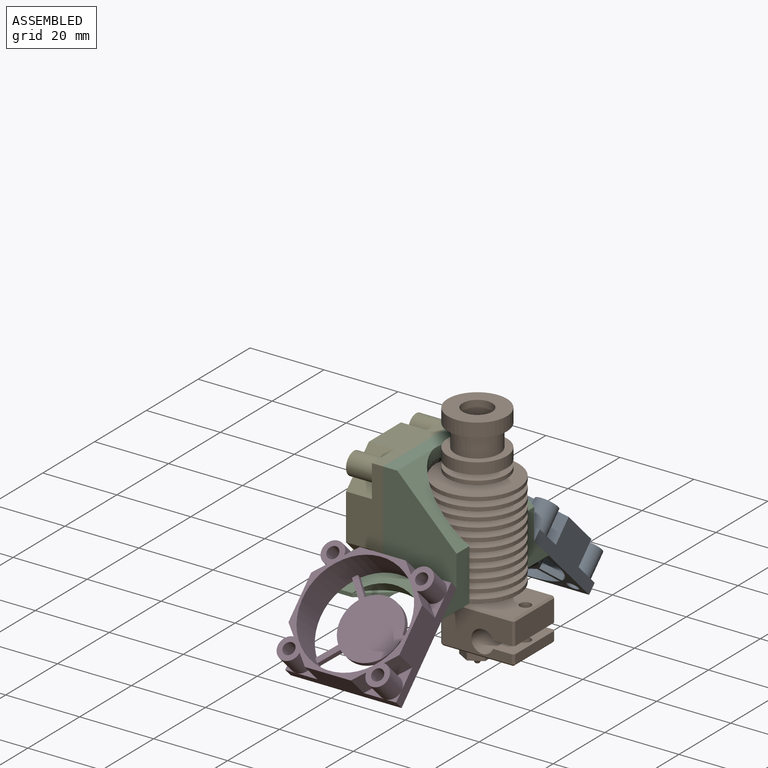
[diagram: assembled view]
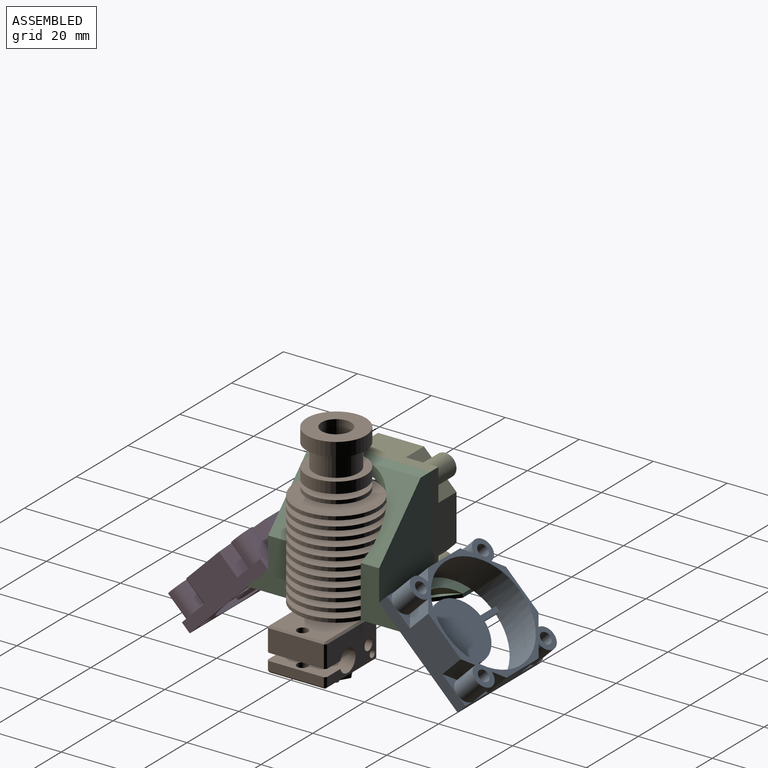
[diagram: assembled view, second angle]
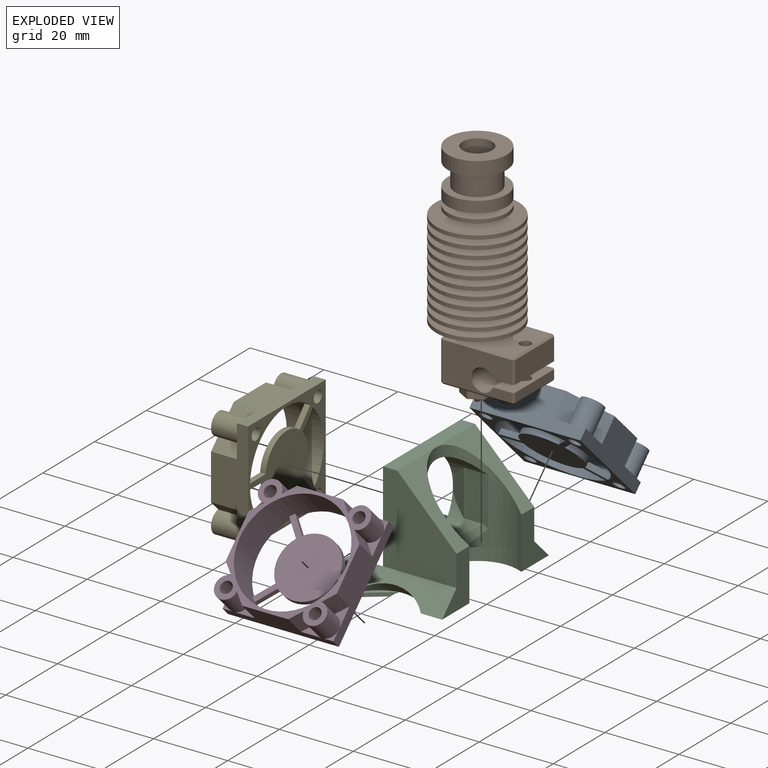
[diagram: exploded view]
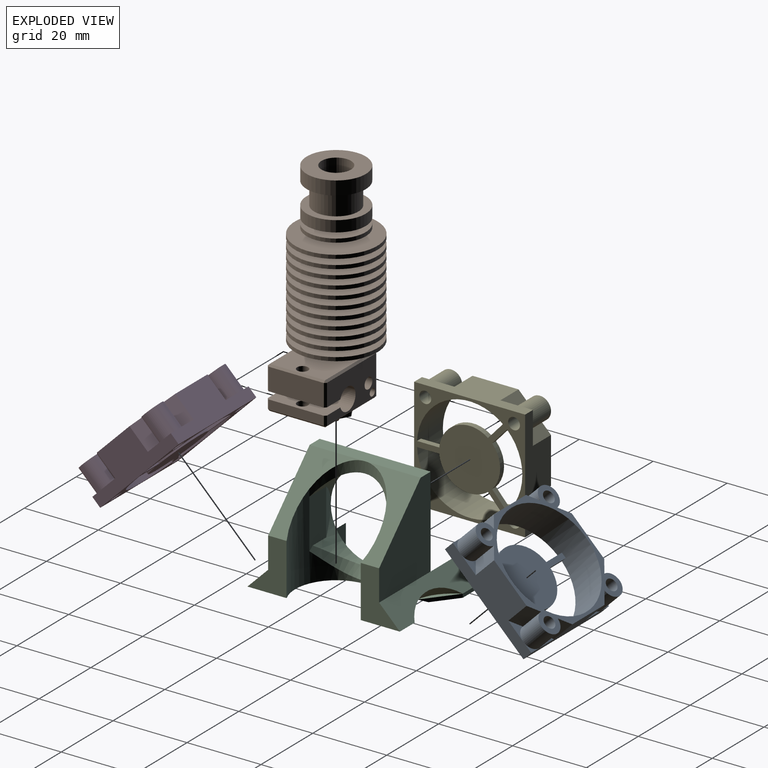
[diagram: exploded view, second angle]
ASSEMBLY  parts=5 mates=4
PART A: 45 faces, bbox 10x30x30 mm
  f0: plane 30x10mm, normal (0,1,0), area 177mm2, adj f2,f6,f10,f18,f19,f24,f25,f40
  f1: cylinder r=1.6mm len=10mm, axis (1,0,0), area 100.5mm2, adj f6,f24
  f2: plane 30x10mm, normal (0,0,-1), area 177mm2, adj f0,f6,f8,f9,f11,f15,f16,f24
  f3: plane 5.79x2.79mm, normal (1,0,0), area 5.8mm2, adj f9,f12,f23
  f4: plane 3x3mm, normal (1,0,0), area 1.9mm2, adj f9,f23,f25
  f5: plane 5.79x2.79mm, normal (1,0,0), area 5.8mm2, adj f9,f13,f14
  f6: plane 30x30mm, normal (-1,0,0), area 470.7mm2, adj f0,f1,f2,f7,f9,f25,f26,f27
  f7: cylinder r=1.6mm len=10mm, axis (1,0,0), area 100.5mm2, adj f6,f24
  f8: plane 3x3mm, normal (1,0,0), area 1.9mm2, adj f2,f9,f14
  f9: plane 30x10mm, normal (0,-1,0), area 177mm2, adj f2,f3,f4,f5,f6,f8,f12,f13
  f10: plane 5.79x2.79mm, normal (1,0,0), area 5.8mm2, adj f0,f19,f20
  f11: plane 5.79x2.79mm, normal (1,0,0), area 5.8mm2, adj f2,f14,f15
  f12: plane 7x2.79mm, normal (0,-0.71,0.71), area 27.7mm2, adj f3,f9,f23,f24
  f13: plane 7x2.79mm, normal (0,-0.71,-0.71), area 27.7mm2, adj f5,f9,f14,f24
  f14: cylinder r=3mm len=7mm, axis (1,0,0), area 96.1mm2, adj f5,f8,f11,f13,f15,f24
  f15: plane 7x2.79mm, normal (0,-0.71,-0.71), area 27.7mm2, adj f2,f11,f14,f24
  f16: plane 7x2.79mm, normal (0,0.71,-0.71), area 27.7mm2, adj f2,f17,f24,f44
  f17: cylinder r=3mm len=7mm, axis (1,0,0), area 96.1mm2, adj f16,f18,f24,f42,f43,f44
  f18: plane 7x2.79mm, normal (0,0.71,-0.71), area 27.7mm2, adj f0,f17,f24,f42
  f19: plane 7x2.79mm, normal (0,0.71,0.71), area 27.7mm2, adj f0,f10,f20,f24
  f20: cylinder r=3mm len=7mm, axis (1,0,0), area 96.1mm2, adj f10,f19,f21,f24,f39,f40
  f21: plane 7x2.79mm, normal (0,0.71,0.71), area 27.7mm2, adj f20,f24,f25,f39
  f22: plane 7x2.79mm, normal (0,-0.71,0.71), area 27.7mm2, adj f23,f24,f25,f41
  f23: cylinder r=3mm len=7mm, axis (1,0,0), area 96.1mm2, adj f3,f4,f12,f22,f24,f41
  f24: plane 30x30mm, normal (1,0,0), area 175.7mm2, adj f0,f1,f2,f7,f9,f12,f13,f14
  f25: plane 30x10mm, normal (0,0,1), area 177mm2, adj f0,f4,f6,f9,f21,f22,f24,f39
  f26: cylinder r=14.25mm len=28.5mm, axis (1,0,0), area 888.6mm2, adj f6,f24,f29,f30,f33,f35,f36,f37
  f27: cylinder r=1.6mm len=10mm, axis (1,0,0), area 100.5mm2, adj f6,f24
  f28: cylinder r=1.6mm len=10mm, axis (1,0,0), area 100.5mm2, adj f6,f24
  f29: plane 6.01x1.5mm, normal (0,0,1), area 9mm2, adj f6,f26,f31,f38
  f30: plane 6.01x1.5mm, normal (0,0,-1), area 9mm2, adj f6,f26,f34,f38
  f31: cylinder r=8.25mm len=13.17mm, axis (1,0,0), area 26.3mm2, adj f6,f29,f37,f38
  f32: cylinder r=8.25mm len=11.18mm, axis (1,0,0), area 18.4mm2, adj f6,f33,f36,f38
  f33: plane 4.46x4.03mm, normal (0,-0.74,-0.67), area 9mm2, adj f6,f26,f32,f38
  f34: cylinder r=8.25mm len=13.17mm, axis (1,0,0), area 26.3mm2, adj f6,f30,f35,f38
  f35: plane 4.46x4.03mm, normal (0,0.74,-0.67), area 9mm2, adj f6,f26,f34,f38
  f36: plane 4.46x4.03mm, normal (0,-0.74,0.67), area 9mm2, adj f6,f26,f32,f38
  f37: plane 4.46x4.03mm, normal (0,0.74,0.67), area 9mm2, adj f6,f26,f31,f38
  f38: plane 24.35x22.11mm, normal (1,0,0), area 240.8mm2, adj f26,f29,f30,f31,f32,f33,f34,f35
  f39: plane 5.79x2.79mm, normal (1,0,0), area 5.8mm2, adj f20,f21,f25
  f40: plane 3x3mm, normal (1,0,0), area 1.9mm2, adj f0,f20,f25
  f41: plane 5.79x2.79mm, normal (1,0,0), area 5.8mm2, adj f22,f23,f25
  f42: plane 5.79x2.79mm, normal (1,0,0), area 5.8mm2, adj f0,f17,f18
  f43: plane 3x3mm, normal (1,0,0), area 1.9mm2, adj f0,f2,f17
  f44: plane 5.79x2.79mm, normal (1,0,0), area 5.8mm2, adj f2,f16,f17
PART B: 111 faces, bbox 26.7x22.3x62.3 mm
  f0: plane 4.04x3mm, normal (-1,0,0), area 12.1mm2, adj f1,f2,f18,f62
  f1: plane 8.08x7mm, normal (0,0,-1), area 31.1mm2, adj f0,f2,f18,f60,f73,f87,f107
  f2: plane 3.5x3mm, normal (-0.5,0.87,0), area 12.1mm2, adj f0,f1,f62,f107
  f3: plane 0.5x0.5mm, normal (-0.58,0.58,0.58), area 0.2mm2, adj f83,f88,f89
  f4: plane 0.5x0.5mm, normal (0.58,0.58,0.58), area 0.2mm2, adj f65,f75,f88
  f5: plane 16x5.65mm, normal (0,0,-1), area 83mm2, adj f9,f63,f67,f89,f90,f92,f100
  f6: plane 19x15mm, normal (0,0,1), area 271.8mm2, adj f63,f65,f71,f81,f83,f88
  f7: plane 15x0.5mm, normal (-0.71,0,-0.71), area 10.6mm2, adj f20,f84,f95,f109
  f8: cylinder r=6mm len=12mm, axis (0,0,1), area 226.2mm2, adj f79,f110
  f9: plane 19x10.5mm, normal (0,1,0), area 160.7mm2, adj f5,f19,f66,f75,f88,f89,f92,f106
  f10: cylinder r=11.15mm len=22.3mm, axis (0,0,1), area 70.1mm2, adj f13,f14
  f11: plane 22.3x22.3mm, normal (0,0,-1), area 277.5mm2, adj f39,f40
  f12: cylinder r=11.15mm len=22.3mm, axis (0,0,1), area 70.1mm2, adj f21,f28
  f13: plane 22.3x22.3mm, normal (0,0,1), area 319.7mm2, adj f10,f74
  f14: plane 22.3x22.3mm, normal (0,0,-1), area 312mm2, adj f10,f27
  f15: plane 0.5x0.5mm, normal (0.58,0.58,-0.58), area 0.2mm2, adj f69,f75,f106
  f16: cylinder r=8mm len=16mm, axis (0,0,1), area 186mm2, adj f79,f103
  f17: plane 0.5x0.5mm, normal (-0.58,-0.58,0.58), area 0.2mm2, adj f71,f83,f90
  f18: plane 3.5x3mm, normal (-0.5,-0.87,0), area 12.1mm2, adj f0,f1,f62,f87
  f19: plane 2.5x0.5mm, normal (-0.71,0.71,0), area 1.8mm2, adj f9,f66,f95,f109
  f20: plane 19x15mm, normal (0,0,-1), area 258.3mm2, adj f7,f22,f61,f69,f106,f108
  f21: plane 22.3x22.3mm, normal (0,0,-1), area 304mm2, adj f12,f29
  f22: cylinder r=2.5mm len=5mm, axis (0,0,1), area 15.7mm2, adj f20,f62
  f23: plane 10.5x0.5mm, normal (0.71,-0.71,0), area 7.4mm2, adj f67,f82,f93,f97
  f24: cylinder r=8mm len=16mm, axis (0,0,1), area 50.3mm2, adj f25,f26
  f25: plane 16x16mm, normal (0,0,-1), area 137.4mm2, adj f24,f101
  f26: plane 16x16mm, normal (0,0,1), area 137.4mm2, adj f24,f99
  f27: cylinder r=5mm len=10mm, axis (0,0,1), area 47.1mm2, adj f14,f28
  f28: plane 22.3x22.3mm, normal (0,0,1), area 312mm2, adj f12,f27
  f29: cylinder r=5.25mm len=10.5mm, axis (0,0,1), area 49.5mm2, adj f21,f30
  f30: plane 22.3x22.3mm, normal (0,0,1), area 304mm2, adj f29,f31
  f31: cylinder r=11.15mm len=22.3mm, axis (0,0,1), area 70.1mm2, adj f30,f32
  f32: plane 22.3x22.3mm, normal (0,0,-1), area 295.5mm2, adj f31,f33
  f33: cylinder r=5.5mm len=11mm, axis (0,0,1), area 51.8mm2, adj f32,f34
  f34: plane 22.3x22.3mm, normal (0,0,1), area 295.5mm2, adj f33,f35
  f35: cylinder r=11.15mm len=22.3mm, axis (0,0,1), area 70.1mm2, adj f34,f36
  f36: plane 22.3x22.3mm, normal (0,0,-1), area 286.7mm2, adj f35,f37
  f37: cylinder r=5.75mm len=11.5mm, axis (0,0,1), area 54.2mm2, adj f36,f38
  f38: plane 22.3x22.3mm, normal (0,0,1), area 286.7mm2, adj f37,f39
  f39: cylinder r=11.15mm len=22.3mm, axis (0,0,1), area 70.1mm2, adj f11,f38
  f40: cylinder r=6mm len=12mm, axis (0,0,1), area 56.5mm2, adj f11,f41
  f41: plane 22.3x22.3mm, normal (0,0,1), area 277.5mm2, adj f40,f42
  f42: cylinder r=11.15mm len=22.3mm, axis (0,0,1), area 70.1mm2, adj f41,f43
  f43: plane 22.3x22.3mm, normal (0,0,-1), area 267.9mm2, adj f42,f44
  f44: cylinder r=6.25mm len=12.5mm, axis (0,0,1), area 58.9mm2, adj f43,f45
  f45: plane 22.3x22.3mm, normal (0,0,1), area 267.9mm2, adj f44,f46
  f46: cylinder r=11.15mm len=22.3mm, axis (0,0,1), area 70.1mm2, adj f45,f47
  f47: plane 22.3x22.3mm, normal (0,0,-1), area 257.8mm2, adj f46,f48
  f48: cylinder r=6.5mm len=13mm, axis (0,0,1), area 61.3mm2, adj f47,f49
  f49: plane 22.3x22.3mm, normal (0,0,1), area 257.8mm2, adj f48,f50
  f50: cylinder r=11.15mm len=22.3mm, axis (0,0,1), area 70.1mm2, adj f49,f51
  f51: plane 22.3x22.3mm, normal (0,0,-1), area 247.4mm2, adj f50,f52
  f52: cylinder r=6.75mm len=13.5mm, axis (0,0,1), area 63.6mm2, adj f51,f53
  f53: plane 22.3x22.3mm, normal (0,0,1), area 247.4mm2, adj f52,f54
  f54: cylinder r=11.15mm len=22.3mm, axis (0,0,1), area 70.1mm2, adj f53,f55
  f55: plane 22.3x22.3mm, normal (0,0,-1), area 236.6mm2, adj f54,f56
  f56: cylinder r=7mm len=14mm, axis (0,0,1), area 66mm2, adj f55,f57
  f57: plane 22.3x22.3mm, normal (0,0,1), area 236.6mm2, adj f56,f58
  f58: cylinder r=11.15mm len=22.3mm, axis (0,0,1), area 70.1mm2, adj f57,f59
  f59: plane 22.3x22.3mm, normal (0,0,-1), area 384.4mm2, adj f58,f81
  f60: plane 4.04x3mm, normal (1,0,0), area 12.1mm2, adj f1,f62,f87,f107
  f61: plane 19x0.5mm, normal (0,-0.71,-0.71), area 13.4mm2, adj f20,f67,f84,f93
  f62: plane 8.08x7mm, normal (0,0,1), area 22.8mm2, adj f0,f2,f18,f22,f60,f87,f107
  f63: cylinder r=1.5mm len=6.5mm, axis (0,0,1), area 61.3mm2, adj f5,f6
  f64: plane 0.4x0.4mm, normal (0,0,-1), area 0.1mm2, adj f94
  f65: plane 15x0.5mm, normal (0.71,0,0.71), area 10.6mm2, adj f4,f6,f82,f97
  f66: plane 16x5.65mm, normal (0,0,1), area 83mm2, adj f9,f19,f67,f91,f92,f108,f109
  f67: plane 19x10.5mm, normal (0,-1,0), area 150.5mm2, adj f5,f23,f61,f66,f71,f90,f91,f92
  f68: plane 8x8mm, normal (0,0,1), area 50.3mm2, adj f80
  f69: plane 15x0.5mm, normal (0.71,0,-0.71), area 10.6mm2, adj f15,f20,f82,f93
  f70: plane 1.55x1.55mm, normal (0,-1,0), area 1.9mm2, adj f98
  f71: plane 19x0.5mm, normal (0,-0.71,0.71), area 13.4mm2, adj f6,f17,f67,f97
  f72: plane 22.3x22.3mm, normal (0,0,1), area 327mm2, adj f77,f101
  f73: cone r=1.9mm half-angle=35deg, axis (0,0,1), area 18.4mm2, adj f1,f96
  f74: cylinder r=4.75mm len=9.5mm, axis (0,0,1), area 44.8mm2, adj f13,f102
  f75: plane 10.5x0.5mm, normal (0.71,0.71,0), area 7.4mm2, adj f4,f9,f15,f82
  f76: plane 16x16mm, normal (0,0,-1), area 137.4mm2, adj f78,f99
  f77: cylinder r=11.15mm len=22.3mm, axis (0,0,1), area 70.1mm2, adj f72,f102
  f78: cylinder r=8mm len=16mm, axis (0,0,1), area 150.8mm2, adj f76,f110
  f79: plane 16x16mm, normal (0,0,-1), area 88mm2, adj f8,f16
  f80: cylinder r=4mm len=8mm, axis (0,0,1), area 163.4mm2, adj f68,f103
  f81: cylinder r=1.4mm len=2.8mm, axis (0,0,1), area 18.5mm2, adj f6,f59
  f82: plane 15x10.5mm, normal (1,0,0), area 157.5mm2, adj f23,f65,f69,f75
  f83: plane 15x0.5mm, normal (-0.71,0,0.71), area 10.6mm2, adj f3,f6,f17,f100
  f84: plane 0.5x0.5mm, normal (-0.58,-0.58,-0.58), area 0.2mm2, adj f7,f61,f91
  f85: plane 2x2mm, normal (0,-1,0), area 1.3mm2, adj f98,f105
  f86: plane 3x3mm, normal (0,-1,0), area 7.1mm2, adj f104
  f87: plane 3.5x3mm, normal (0.5,-0.87,0), area 12.1mm2, adj f1,f18,f60,f62
  f88: plane 19x0.5mm, normal (0,0.71,0.71), area 13.4mm2, adj f3,f4,f6,f9
  f89: plane 6x0.5mm, normal (-0.71,0.71,0), area 4.2mm2, adj f3,f5,f9,f100
  f90: plane 6x0.5mm, normal (-0.71,-0.71,0), area 4.2mm2, adj f5,f17,f67,f100
  f91: plane 2.5x0.5mm, normal (-0.71,-0.71,0), area 1.8mm2, adj f66,f67,f84,f109
  f92: cylinder r=3.02mm len=16mm, axis (0,-1,0), area 271.5mm2, adj f5,f9,f66,f67
  f93: plane 0.5x0.5mm, normal (0.58,-0.58,-0.58), area 0.2mm2, adj f23,f61,f69
  f94: cylinder r=0.2mm len=3mm, axis (0,0,-1), area 3.8mm2, adj f64,f96
  f95: plane 0.5x0.5mm, normal (-0.58,0.58,-0.58), area 0.2mm2, adj f7,f19,f106
  f96: plane 1x1mm, normal (0,0,-1), area 0.7mm2, adj f73,f94
  f97: plane 0.5x0.5mm, normal (0.58,-0.58,0.58), area 0.2mm2, adj f23,f65,f71
  f98: cylinder r=0.78mm len=2.45mm, axis (0,-1,0), area 11.9mm2, adj f70,f85
  f99: cylinder r=4.5mm len=9mm, axis (0,0,1), area 42.4mm2, adj f26,f76
  f100: plane 15x6mm, normal (-1,0,0), area 90mm2, adj f5,f83,f89,f90
  f101: cylinder r=4.5mm len=9mm, axis (0,0,1), area 42.4mm2, adj f25,f72
  f102: plane 22.3x22.3mm, normal (0,0,-1), area 319.7mm2, adj f74,f77
  f103: plane 16x16mm, normal (0,0,1), area 150.8mm2, adj f16,f80
  f104: cylinder r=1.5mm len=3.45mm, axis (0,-1,0), area 32.5mm2, adj f67,f86
  f105: cylinder r=1mm len=2mm, axis (0,-1,0), area 12.6mm2, adj f67,f85
  f106: plane 19x0.5mm, normal (0,0.71,-0.71), area 13.4mm2, adj f9,f15,f20,f95
  f107: plane 3.5x3mm, normal (0.5,0.87,0), area 12.1mm2, adj f1,f2,f60,f62
  f108: cylinder r=1.5mm len=3mm, axis (0,0,1), area 28.3mm2, adj f20,f66
  f109: plane 15x2.5mm, normal (-1,0,0), area 37.5mm2, adj f7,f19,f66,f91
  f110: plane 16x16mm, normal (0,0,1), area 88mm2, adj f8,f78
PART C: 39 faces, bbox 46.9x35.7x38.9 mm
  f0: plane 23.25x18.68mm, normal (0,0,-1), area 131.1mm2, adj f1,f6,f8,f15,f22
  f1: plane 30x5.6mm, normal (0.71,0,0.71), area 177.9mm2, adj f0,f8,f9,f13,f14,f15,f20
  f2: plane 30x30mm, normal (0,-1,0), area 447.4mm2, adj f3,f4,f5,f9,f13,f17,f27,f31
  f3: plane 30x3.85mm, normal (0,0,1), area 115.5mm2, adj f2,f9,f12,f27,f30
  f4: cylinder r=12mm len=24.01mm, axis (0,-1,0), area 162.2mm2, adj f2,f7,f10,f11,f25,f28,f29
  f5: cylinder r=12mm len=24.01mm, axis (0,-1,0), area 177.8mm2, adj f2,f6,f10,f11,f28,f29
  f6: cylinder r=11.15mm len=30mm, axis (0,0,-1), area 452.5mm2, adj f0,f5,f7,f8,f11,f12,f23,f25
  f7: bspline ~12.35x10.74mm, area 39.7mm2, adj f4,f6,f11,f25
  f8: plane 13.97x10.57mm, normal (0,1,0), area 85.2mm2, adj f0,f1,f6,f9,f12
  f9: plane 24.4x19.88mm, normal (1,0,0), area 356.6mm2, adj f1,f2,f3,f8,f12
  f10: plane 14.49x6.26mm, normal (-0.92,-0.38,0), area 38.3mm2, adj f4,f5,f11
  f11: plane 13.38x6.53mm, normal (-1,0,0), area 81.1mm2, adj f4,f5,f6,f7,f10
  f12: plane 21.68x21.68mm, normal (0,0.71,0.71), area 127.5mm2, adj f3,f6,f8,f9
  f13: plane 10.12x5.6mm, normal (-1,0,0), area 56.7mm2, adj f1,f2,f14,f17
  f14: plane 6.6x5.6mm, normal (0,-1,0), area 21.3mm2, adj f1,f13,f18,f20,f21
  f15: cylinder r=11.67mm len=18.56mm, axis (0.71,0,0.71), area 48.8mm2, adj f0,f1,f16
  f16: plane 9.99x8.17mm, normal (0,0,1), area 8.9mm2, adj f15,f19
  f17: plane 15x10.12mm, normal (0,0,1), area 75.9mm2, adj f2,f13,f18
  f18: plane 15x10.12mm, normal (-0.56,-0.83,0), area 18.1mm2, adj f14,f17,f21,f36
  f19: plane 8.25x6.43mm, normal (0.79,0.61,0), area 9.2mm2, adj f16,f20,f21,f22
  f20: plane 5.72x1mm, normal (1,0,0), area 5.7mm2, adj f1,f14,f19,f21
  f21: plane 41.2x11.96mm, normal (0,0,-1), area 310.5mm2, adj f14,f18,f19,f20,f22,f32,f36,f37
  f22: plane 31.46x2.01mm, normal (0,0.45,-0.9), area 67.2mm2, adj f0,f19,f21,f23,f37
  f23: plane 23.25x18.68mm, normal (0,0,-1), area 131.1mm2, adj f6,f22,f24,f26,f33
  f24: plane 30x5.6mm, normal (-0.71,0,0.71), area 177.9mm2, adj f23,f26,f27,f31,f32,f33,f38
  f25: bspline ~12.35x10.74mm, area 39.7mm2, adj f4,f6,f7,f29
  f26: plane 13.97x10.57mm, normal (0,1,0), area 85.2mm2, adj f6,f23,f24,f27,f30
  f27: plane 24.4x19.88mm, normal (-1,0,0), area 356.6mm2, adj f2,f3,f24,f26,f30
  f28: plane 14.49x6.26mm, normal (0.92,-0.38,0), area 38.3mm2, adj f4,f5,f29
  f29: plane 13.38x6.53mm, normal (1,0,0), area 81.1mm2, adj f4,f5,f6,f25,f28
  f30: plane 20.98x20.98mm, normal (0,0.71,0.71), area 127.5mm2, adj f3,f6,f26,f27
  f31: plane 10.12x5.6mm, normal (1,0,0), area 56.7mm2, adj f2,f24,f32,f35
  f32: plane 6.6x5.6mm, normal (0,-1,0), area 21.3mm2, adj f21,f24,f31,f36,f38
  f33: cylinder r=11.67mm len=18.56mm, axis (-0.71,0,0.71), area 48.8mm2, adj f23,f24,f34
  f34: plane 9.99x8.17mm, normal (0,0,1), area 8.9mm2, adj f33,f37
  f35: plane 15x10.12mm, normal (0,0,1), area 75.9mm2, adj f2,f31,f36
  f36: plane 15x10.12mm, normal (0.56,-0.83,0), area 18.1mm2, adj f18,f21,f32,f35
  f37: plane 8.25x6.43mm, normal (-0.79,0.61,0), area 9.2mm2, adj f21,f22,f34,f38
  f38: plane 5.72x1mm, normal (-1,0,0), area 5.7mm2, adj f21,f24,f32,f37
PART D: same geometry as A
PART E: same geometry as A
PLACE A rot(axis=(0.36,-0.36,0.86),98.4deg) t=(-52.23,36.49,-21.08)mm
PLACE B rot(axis=(0,0,1),180deg) t=(-45.11,13.88,5.28)mm
PLACE C rot(axis=(0,0,-1),90deg) t=(-37.23,9.31,-16.07)mm
PLACE D rot(axis=(-0.36,-0.36,-0.86),98.4deg) t=(-52.23,-14.73,-21.08)mm
PLACE E rot(axis=(0,0,1),180deg) t=(-57.11,10.88,-1.07)mm
MATE fastened A.f6 <-> C.f24  axis (0,-0.71,-0.71) through (-37.23,25.88,-10.47)mm
MATE fastened C.f6 <-> B.f81  axis (0,0,-1) through (-42.11,10.88,-16.07)mm
MATE fastened D.f6 <-> C.f1  axis (0,0.71,-0.71) through (-67.23,-4.12,-10.47)mm
MATE fastened E.f6 <-> C.f2  axis (1,0,0) through (-57.11,25.88,13.93)mm
